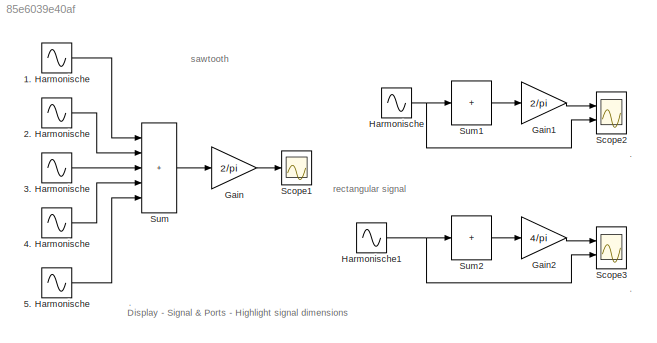
MODEL slx_85e6039e40af
KIND model
CONFIG AbsTol = auto
CONFIG EnableMultiTasking = on
CONFIG FixedStep = auto
CONFIG MaxStep = 0.01
CONFIG MinStep = auto
CONFIG RelTol = 1e-3
CONFIG SampleTimeConstraint = Unconstrained
CONFIG SolverName = ode45
CONFIG StartTime = -8
CONFIG StopTime = 8
BLOCK [Sin] 1. Harmonische
  Ports = [0, 1]
  SampleTime = 0
BLOCK [Sin] 2. Harmonische
  Amplitude = 1/2
  Frequency = 2
  Ports = [0, 1]
  SampleTime = 0
BLOCK [Sin] 3. Harmonische
  Amplitude = 1/3
  Frequency = 3
  Ports = [0, 1]
  SampleTime = 0
BLOCK [Sin] 4. Harmonische
  Amplitude = 1/4
  Frequency = 4
  Ports = [0, 1]
  SampleTime = 0
BLOCK [Sin] 5. Harmonische
  Amplitude = 1/5
  Frequency = 5
  Ports = [0, 1]
  SampleTime = 0
BLOCK [Gain] Gain
  Gain = 2/pi
  OutDataTypeStr = Inherit: Same as input
  ParamDataTypeStr = Inherit: Same as input
  SaturateOnIntegerOverflow = on
BLOCK [Gain] Gain1
  Gain = 2/pi
  OutDataTypeStr = Inherit: Same as input
  ParamDataTypeStr = Inherit: Same as input
  SaturateOnIntegerOverflow = on
BLOCK [Gain] Gain2
  Gain = 4/pi
  OutDataTypeStr = Inherit: Same as input
  ParamDataTypeStr = Inherit: Same as input
  SaturateOnIntegerOverflow = on
BLOCK [Sin] Harmonische
  Amplitude = 1./(1:5)
  Frequency = 1:5
  Ports = [0, 1]
  SampleTime = 0
BLOCK [Sin] Harmonische1
  Amplitude = 1./(1:2:50)
  Frequency = 1:2:50
  Ports = [0, 1]
  SampleTime = 0
BLOCK [Scope] Scope1
  Floating = off
  NumInputPorts = 1
  Ports = [1]
  ScopeSpecificationString = Simulink.scopes.TimeScopeBlockCfg('CurrentConfiguration', extmgr.ConfigurationSet(extmgr.Configuration('Core','General UI',true),extmgr.Configuration('Core','Source UI',true),extmgr.Configuration('Sources','WiredSimulink',true,'DataLogging',true,'DataLoggingSaveFormat','StructureWithTime','DataLoggingDecimation','1','DataLoggingDecimateData',true),extmgr.Configuration('Visuals','Time Domain',true,...<+1682ch>
BLOCK [Scope] Scope2
  Floating = off
  NumInputPorts = 2
  Ports = [2]
  ScopeSpecificationString = Simulink.scopes.TimeScopeBlockCfg('CurrentConfiguration', extmgr.ConfigurationSet(extmgr.Configuration('Core','General UI',true),extmgr.Configuration('Core','Source UI',true),extmgr.Configuration('Sources','WiredSimulink',true,'DataLogging',true,'DataLoggingSaveFormat','StructureWithTime','DataLoggingDecimation','1','DataLoggingDecimateData',true,'DataLoggingVariableName','ScopeData1'),extmgr.Conf...<+2504ch>
BLOCK [Scope] Scope3
  Floating = off
  NumInputPorts = 2
  Ports = [2]
  ScopeSpecificationString = Simulink.scopes.TimeScopeBlockCfg('CurrentConfiguration', extmgr.ConfigurationSet(extmgr.Configuration('Core','General UI',true),extmgr.Configuration('Core','Source UI',true),extmgr.Configuration('Sources','WiredSimulink',true,'DataLogging',true,'DataLoggingSaveFormat','StructureWithTime','DataLoggingDecimation','1','DataLoggingDecimateData',true,'DataLoggingVariableName','ScopeData2'),extmgr.Conf...<+2866ch>
BLOCK [Sum] Sum
  IconShape = rectangular
  Inputs = 5
  Ports = [5, 1]
  SaturateOnIntegerOverflow = on
BLOCK [Sum] Sum1
  IconShape = rectangular
  Inputs = +
  Ports = [1, 1]
  SaturateOnIntegerOverflow = on
BLOCK [Sum] Sum2
  IconShape = rectangular
  Inputs = +
  Ports = [1, 1]
  SaturateOnIntegerOverflow = on
ANNOTATION (root): .
ANNOTATION (root): rectangular signal
ANNOTATION (root): sawtooth
ANNOTATION (root): Display - Signal & Ports - Highlight signal dimensions
LINE 1. Harmonische:1 -> Sum:1
LINE 2. Harmonische:1 -> Sum:2
LINE 3. Harmonische:1 -> Sum:3
LINE 4. Harmonische:1 -> Sum:4
LINE 5. Harmonische:1 -> Sum:5
LINE Gain1:1 -> Scope2:1
LINE Gain2:1 -> Scope3:1
LINE Gain:1 -> Scope1:1
NET Harmonische1:1 -> Scope3:2, Sum2:1
NET Harmonische:1 -> Scope2:2, Sum1:1
LINE Sum1:1 -> Gain1:1
LINE Sum2:1 -> Gain2:1
LINE Sum:1 -> Gain:1
note: NET lines group one-source signal fan-out (src -> all destinations, sorted); 1:1 wires keep LINE
